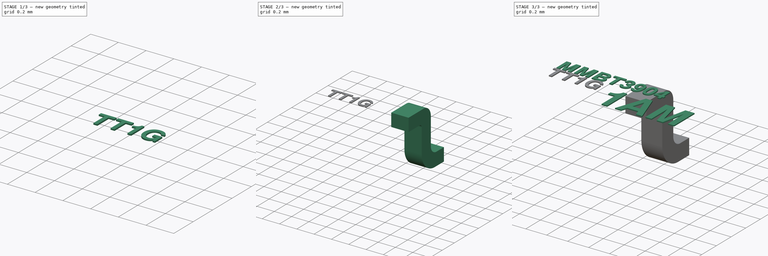
[diagram: build sequence overview — one tinted view per stage of 3, left to right]
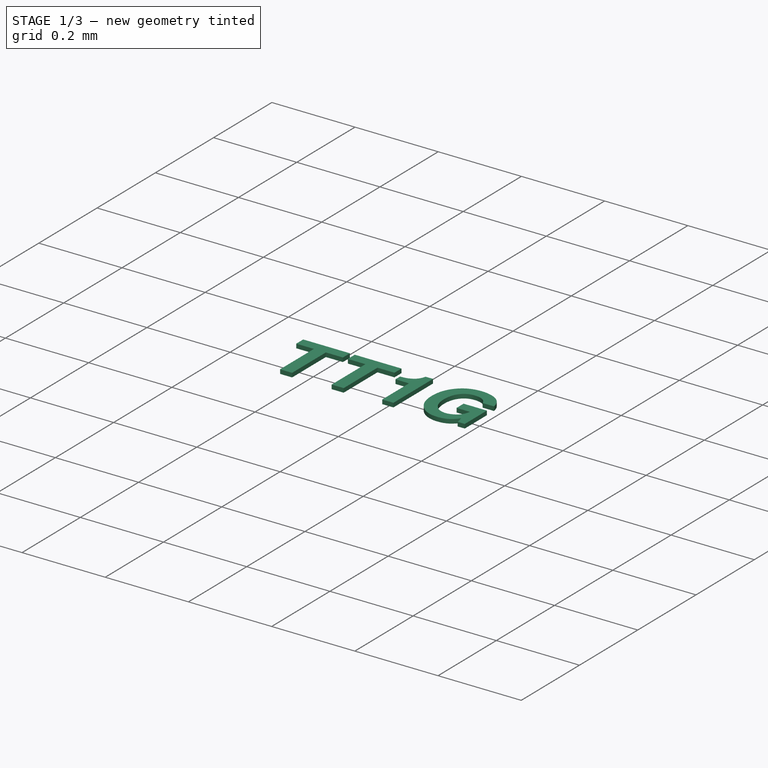
[diagram: stage 1 of 3 — iso view after this stage's code; geometry added in this stage tinted green]
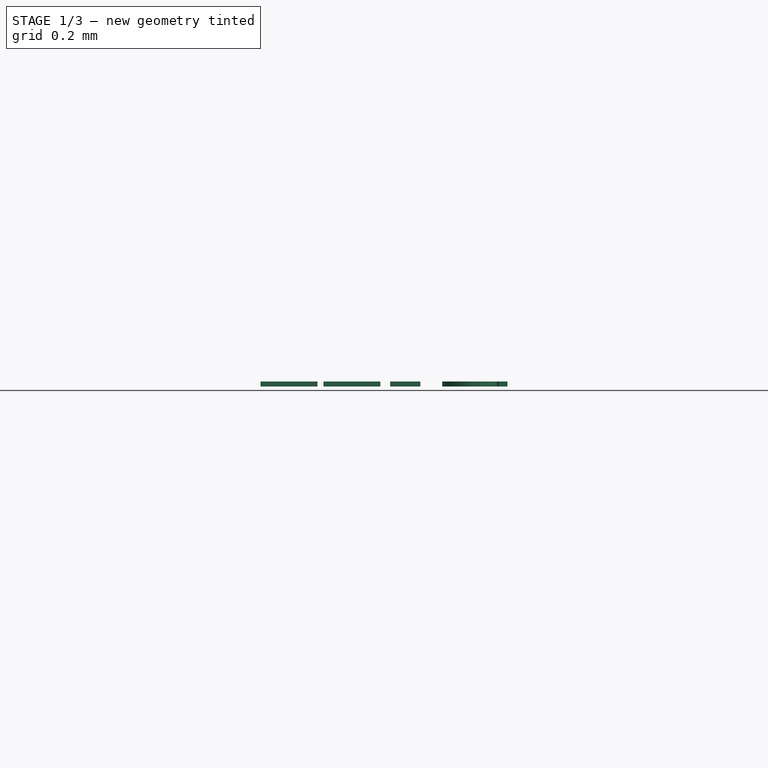
[diagram: stage 1 of 3 — front view after this stage's code; geometry added in this stage tinted green]
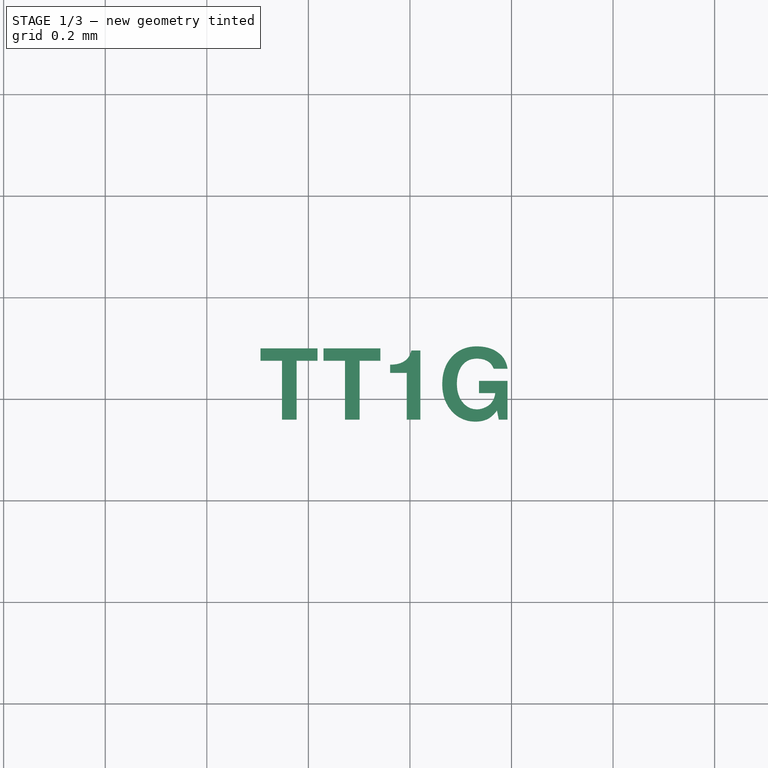
[diagram: stage 1 of 3 — top view after this stage's code; geometry added in this stage tinted green]
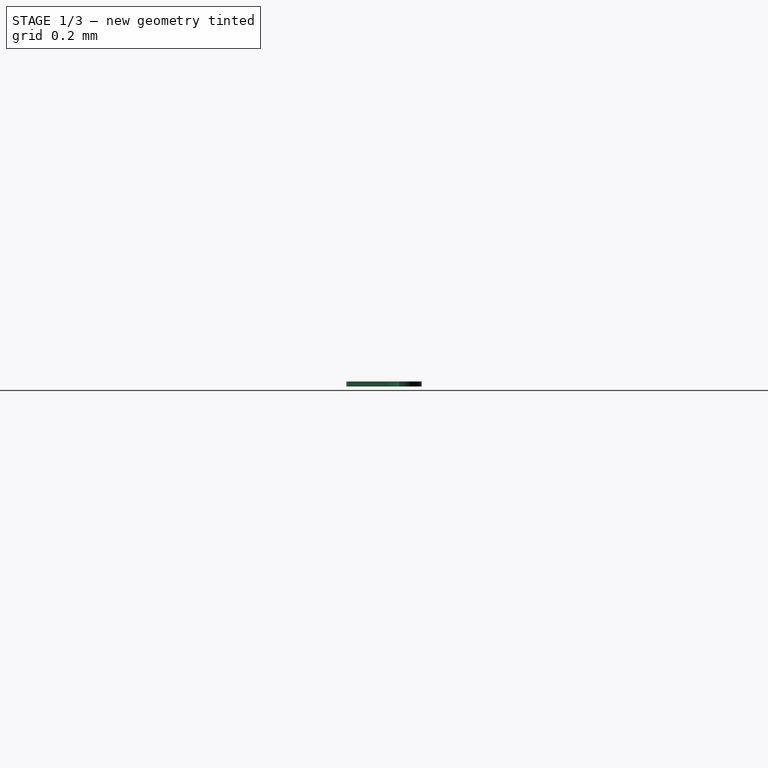
[diagram: stage 1 of 3 — right view after this stage's code; geometry added in this stage tinted green]
FCSTD DOCUMENT  (FreeCAD 0.19R16945 (Git))
Label: SOT-416_SC-75
License: All rights reserved
LicenseURL: http://en.wikipedia.org/wiki/All_rights_reserved
objects: Sketcher::SketchObject×4, PartDesign::Body×4, Part::Part2DObjectPython×3, Part::Extrusion×3, PartDesign::FeatureBase×2, Spreadsheet::Sheet×1, PartDesign::AdditiveLoft×1, PartDesign::Pad×1
note: 20 computed .brp shape members not serialized (recipe doc carries the construction recipe); baked Part::Feature solids carry a one-line shape summary decoded from their .brp

FEATURE [Spreadsheet::Sheet] Spreadsheet
  cells = A1=SOT-416; B1=NOM; A2=d_A; B2(d_A)==0.8mm; A3=d_A1; B3(d_A1)==0.05mm; A4=d_b; B4(d_b)==0.2mm; A5=d_c; B5(d_c)==0.15mm; C5=x; A6=d_D; B6(d_D)==1.6mm; A7=d_E; B7(d_E)==0.8mm; A8=d_e; B8(d_e)==1mm; A9=d_L; B9(d_L)==0.15mm; A10=d_L1; C10=x; A11=d_HE; B11(d_HE)==1.6mm; A12=d_T; B12(d_T)=2; C12=angle; A14=d_C; B14(d_C)=0.85; C14=package draft factor
FEATURE [Sketcher::SketchObject] Sketch  label="Mid"
  AttachmentOffset = pos=(0,0,0.53) rot=(0,0,1;0rad)
  MapMode = 5
  Placement = pos=(0,0,0.53) rot=(0,0,1;0rad)
  Support = -> [XY_Plane]
  expr: AttachmentOffset.Base.z = Spreadsheet.d_A1 + 0.6 * Spreadsheet.d_A
  expr: Constraints[10] = Spreadsheet.d_E
  expr: Constraints[9] = Spreadsheet.d_D
  sketch-geometry (4):
    g0: LineSegment StartX=-0.8 StartY=0.4 StartZ=0 EndX=0.8 EndY=0.4 EndZ=0
    g1: LineSegment StartX=0.8 StartY=0.4 StartZ=0 EndX=0.8 EndY=-0.4 EndZ=0
    g2: LineSegment StartX=0.8 StartY=-0.4 StartZ=0 EndX=-0.8 EndY=-0.4 EndZ=0
    g3: LineSegment StartX=-0.8 StartY=-0.4 StartZ=0 EndX=-0.8 EndY=0.4 EndZ=0
  constraints (11):
    c: Coincident(g0,g1)
    c: Coincident(g1,g2)
    c: Coincident(g2,g3)
    c: Coincident(g3,g0)
    c: Horizontal(g0)
    c: Horizontal(g2)
    c: Vertical(g1)
    c: Vertical(g3)
    c: Symmetric(g0,g2,g-1)
    c: DistanceX(g0,g0) = 1.6
    c: DistanceY(g3,g3) = 0.8
FEATURE [Sketcher::SketchObject] Sketch001  label="Bottom"
  AttachmentOffset = pos=(0,0,0.05) rot=(0,0,1;0rad)
  MapMode = 5
  Placement = pos=(0,0,0.05) rot=(0,0,1;0rad)
  Support = -> [XY_Plane]
  expr: AttachmentOffset.Base.z = Spreadsheet.d_A1
  expr: Constraints[10] = Spreadsheet.d_E * Spreadsheet.d_C
  expr: Constraints[9] = Spreadsheet.d_D
  sketch-geometry (4):
    g0: LineSegment StartX=-0.8 StartY=0.34 StartZ=0 EndX=0.8 EndY=0.34 EndZ=0
    g1: LineSegment StartX=0.8 StartY=0.34 StartZ=0 EndX=0.8 EndY=-0.34 EndZ=0
    g2: LineSegment StartX=0.8 StartY=-0.34 StartZ=0 EndX=-0.8 EndY=-0.34 EndZ=0
    g3: LineSegment StartX=-0.8 StartY=-0.34 StartZ=0 EndX=-0.8 EndY=0.34 EndZ=0
  constraints (11):
    c: Coincident(g0,g1)
    c: Coincident(g1,g2)
    c: Coincident(g2,g3)
    c: Coincident(g3,g0)
    c: Horizontal(g0)
    c: Horizontal(g2)
    c: Vertical(g1)
    c: Vertical(g3)
    c: Symmetric(g0,g2,g-1)
    c: DistanceX(g0,g0) = 1.6
    c: DistanceY(g3,g3) = 0.68
FEATURE [Sketcher::SketchObject] Sketch002  label="Top"
  AttachmentOffset = pos=(0,0,0.8) rot=(0,0,1;0rad)
  MapMode = 5
  Placement = pos=(0,0,0.8) rot=(0,0,1;0rad)
  Support = -> [XY_Plane]
  expr: Constraints[10] = Sketch001.Constraints[10]
  expr: Constraints[9] = Sketch001.Constraints[9]
  expr: AttachmentOffset.Base.z = Spreadsheet.d_A
  sketch-geometry (4):
    g0: LineSegment StartX=-0.8 StartY=0.34 StartZ=0 EndX=0.8 EndY=0.34 EndZ=0
    g1: LineSegment StartX=0.8 StartY=0.34 StartZ=0 EndX=0.8 EndY=-0.34 EndZ=0
    g2: LineSegment StartX=0.8 StartY=-0.34 StartZ=0 EndX=-0.8 EndY=-0.34 EndZ=0
    g3: LineSegment StartX=-0.8 StartY=-0.34 StartZ=0 EndX=-0.8 EndY=0.34 EndZ=0
  constraints (11):
    c: Coincident(g0,g1)
    c: Coincident(g1,g2)
    c: Coincident(g2,g3)
    c: Coincident(g3,g0)
    c: Horizontal(g0)
    c: Horizontal(g2)
    c: Vertical(g1)
    c: Vertical(g3)
    c: Symmetric(g0,g2,g-1)
    c: DistanceX(g0,g0) = 1.6
    c: DistanceY(g3,g3) = 0.68
FEATURE [PartDesign::AdditiveLoft] AdditiveLoft
  Closed = true
  Profile = -> Sketch002
  Ruled = true
  Sections = -> [Sketch,Sketch001]
FEATURE [PartDesign::Body] Body003  label="LeadClone2"
  Group = -> [Clone001]
  Origin = -> Origin003
  Placement = pos=(-0.5,0,0) rot=(0,0,1;3.14159rad)
  Tip = -> Clone001
  expr: Placement.Base.x = -Spreadsheet.d_e / 2
FEATURE [Part::Part2DObjectPython] ShapeString002  # Draft 2D object (typed FeaturePython)
  AttachmentOffset = pos=(-0.3,0.1,0) rot=(0,0,1;1.5708rad)
  FontFile = <userpath>/Desktop/GitHub/freecad-projects/00-fonts/FreeSansBold.ttf
  MapMode = 6
  Placement = pos=(-0.7,-0.04,0.8) rot=(0,0,1;0rad)
  Size = 0.075
  String = TT1G
  Support = -> [AdditiveLoft]
  Tracking = 0
FEATURE [Part::Extrusion] Extrude002
  Base = -> ShapeString002
  Dir = (0,0,1)
  DirMode = 2
  FaceMakerClass = Part::FaceMakerBullseye
  LengthFwd = 0.01
  LengthRev = 0
  Solid = false
  Symmetric = false
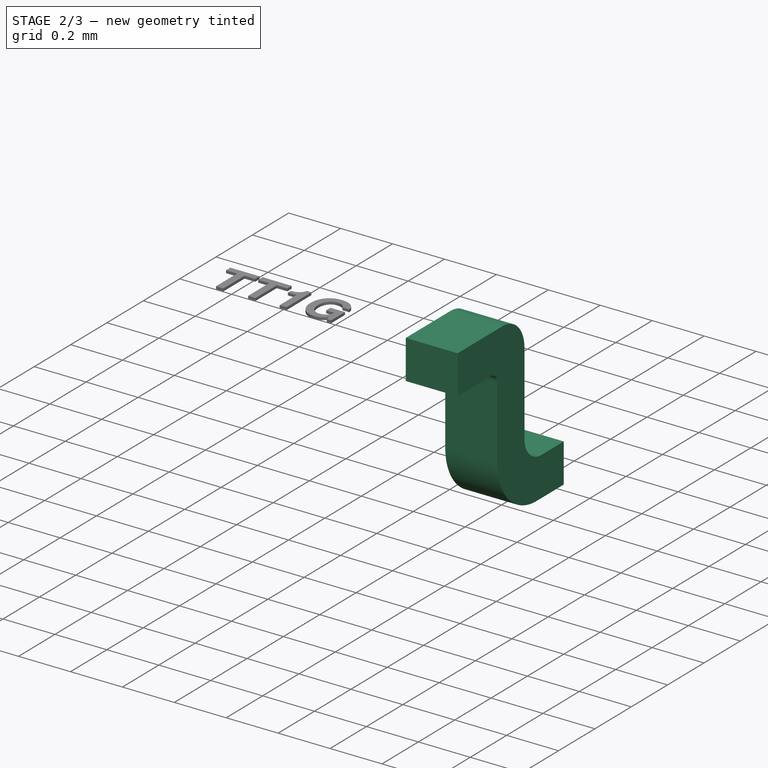
[diagram: stage 2 of 3 — iso view after this stage's code; geometry added in this stage tinted green]
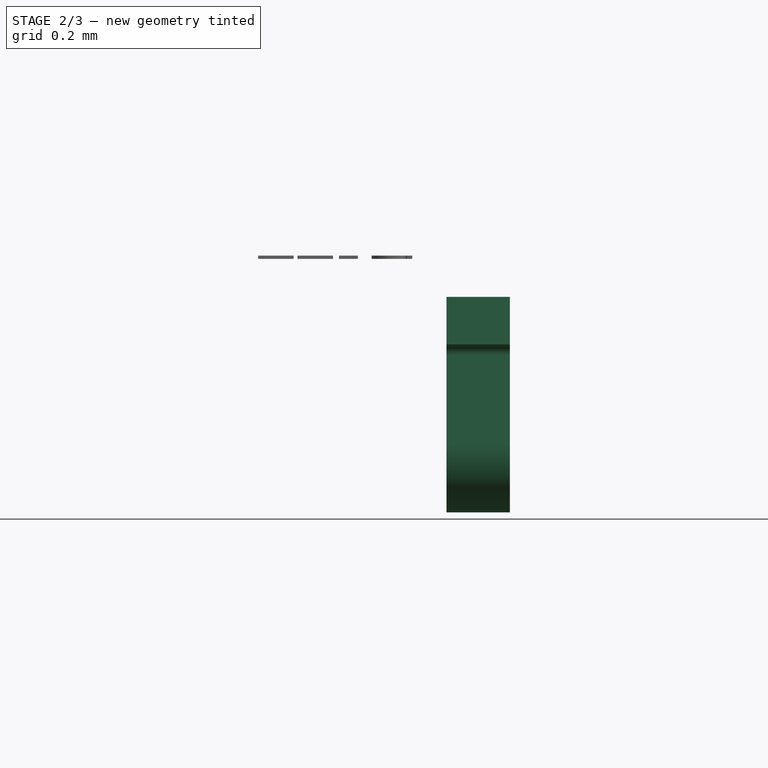
[diagram: stage 2 of 3 — front view after this stage's code; geometry added in this stage tinted green]
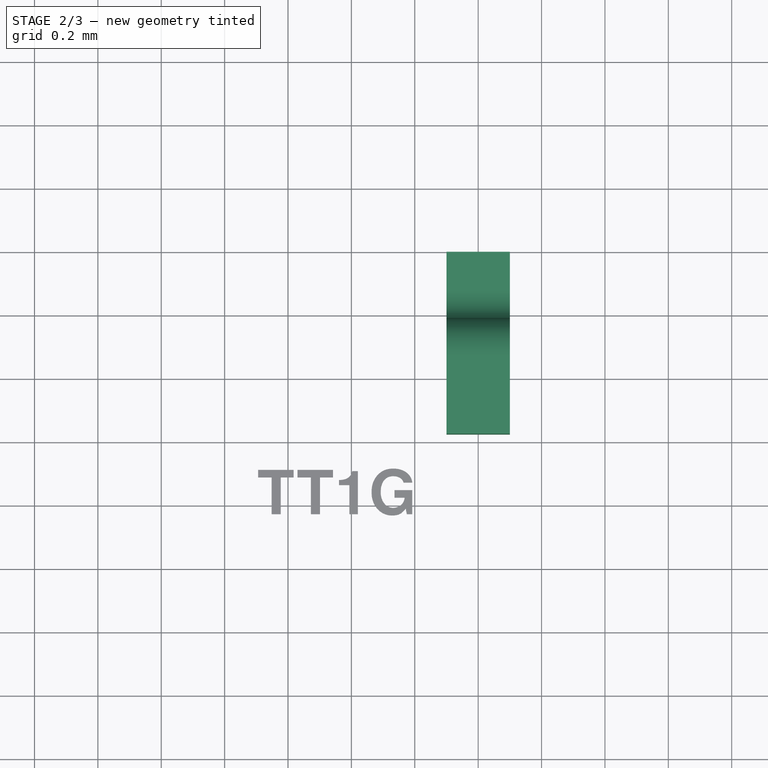
[diagram: stage 2 of 3 — top view after this stage's code; geometry added in this stage tinted green]
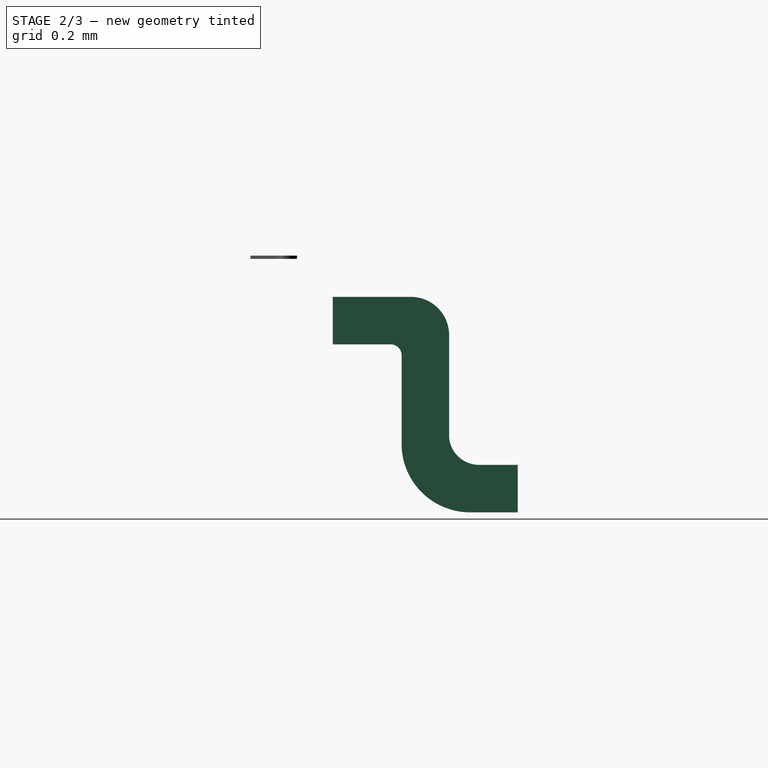
[diagram: stage 2 of 3 — right view after this stage's code; geometry added in this stage tinted green]
FEATURE [Sketcher::SketchObject] Sketch003
  MapMode = 5
  Placement = pos=(0,0,0) rot=(0.57735,0.57735,0.57735;2.0944rad)
  Support = -> [YZ_Plane001]
  expr: Constraints[23] = Spreadsheet.d_c
  expr: Constraints[15] = Spreadsheet.d_c
  expr: Constraints[7] = Spreadsheet.d_c
  expr: Constraints[26] = Spreadsheet.d_A1 + 0.6 * Spreadsheet.d_A
  expr: Constraints[3] = Spreadsheet.d_HE / 2
  expr: Constraints[2] = Spreadsheet.d_L
  sketch-geometry (12):
    g0: LineSegment StartX=0.65 StartY=0 StartZ=0 EndX=0.8 EndY=0 EndZ=0
    g1: ArcOfCircle CenterX=0.65 CenterY=0.216628 CenterZ=0 NormalX=0 NormalY=0 NormalZ=1 AngleXU=0 Radius=0.216628 StartAngle=3.17508 EndAngle=4.71239
    g2: LineSegment StartX=0.8 StartY=0 StartZ=0 EndX=0.8 EndY=0.15 EndZ=0
    g3: LineSegment StartX=0.8 StartY=0.15 StartZ=0 EndX=0.6816 EndY=0.15 EndZ=0
    g4: ArcOfCircle CenterX=0.677756 CenterY=0.244658 CenterZ=0 NormalX=0 NormalY=0 NormalZ=1 AngleXU=0 Radius=0.094736 StartAngle=3.24162 EndAngle=4.75298
    g5: LineSegment StartX=0.433494 StartY=0.209375 StartZ=0 EndX=0.433494 EndY=0.497765 EndZ=0
    g6: LineSegment StartX=0.583494 StartY=0.235198 StartZ=0 EndX=0.583494 EndY=0.559324 EndZ=0
    g7: ArcOfCircle CenterX=0.399043 CenterY=0.495607 CenterZ=0 NormalX=0 NormalY=0 NormalZ=1 AngleXU=0 Radius=0.0345185 StartAngle=0.0625713 EndAngle=1.65595
    g8: LineSegment StartX=0.396107 StartY=0.53 StartZ=0 EndX=0.216153 EndY=0.53 EndZ=0
    g9: LineSegment StartX=0.216153 StartY=0.53 StartZ=0 EndX=0.216153 EndY=0.68 EndZ=0
    g10: LineSegment StartX=0.216153 StartY=0.68 StartZ=0 EndX=0.462817 EndY=0.68 EndZ=0
    g11: ArcOfCircle CenterX=0.462817 CenterY=0.559324 CenterZ=0 NormalX=0 NormalY=0 NormalZ=1 AngleXU=0 Radius=0.120676 StartAngle=0 EndAngle=1.5708
  constraints (27):
    c: PointOnObject(g0,g-1)
    c: PointOnObject(g0,g-1)
    c: DistanceX(g0,g0) = 0.15
    c: DistanceX(g-1,g0) = 0.8
    c: Tangent(g1,g0) = -1.5708
    c: Coincident(g2,g0)
    c: Vertical(g2)
    c: DistanceY(g2,g2) = 0.15
    c: Coincident(g3,g2)
    c: Horizontal(g3)
    c: Coincident(g4,g3)
    c: Coincident(g5,g1)
    c: Vertical(g5)
    c: Coincident(g6,g4)
    c: Vertical(g6)
    c: DistanceX(g1,g4) = 0.15
    c: Coincident(g7,g5)
    c: Coincident(g8,g7)
    c: Horizontal(g8)
    c: Coincident(g9,g8)
    c: Vertical(g9)
    c: Coincident(g10,g9)
    c: Horizontal(g10)
    c: DistanceY(g9,g9) = 0.15
    c: Tangent(g6,g11) = -1.5708
    c: Tangent(g10,g11) = 1.5708
    c: DistanceY(g-1,g8) = 0.53
FEATURE [PartDesign::Pad] Pad
  Length = 0.2
  Length2 = 100
  Midplane = true
  Placement = pos=(0,0,0) rot=(0.57735,0.57735,0.57735;2.0944rad)
  Profile = -> Sketch003
  Type = 0
  expr: Length = Spreadsheet.d_b
FEATURE [PartDesign::Body] Body001  label="Lead"
  Group = -> [Sketch003,Pad]
  Origin = -> Origin001
  Tip = -> Pad
FEATURE [PartDesign::FeatureBase] Clone
  BaseFeature = -> Body001
FEATURE [PartDesign::Body] Body002  label="LeadClone1"
  Group = -> [Clone]
  Origin = -> Origin002
  Placement = pos=(0.5,0,0) rot=(0,0,1;3.14159rad)
  Tip = -> Clone
  expr: Placement.Base.x = Spreadsheet.d_e / 2
FEATURE [PartDesign::FeatureBase] Clone001
  BaseFeature = -> Body001
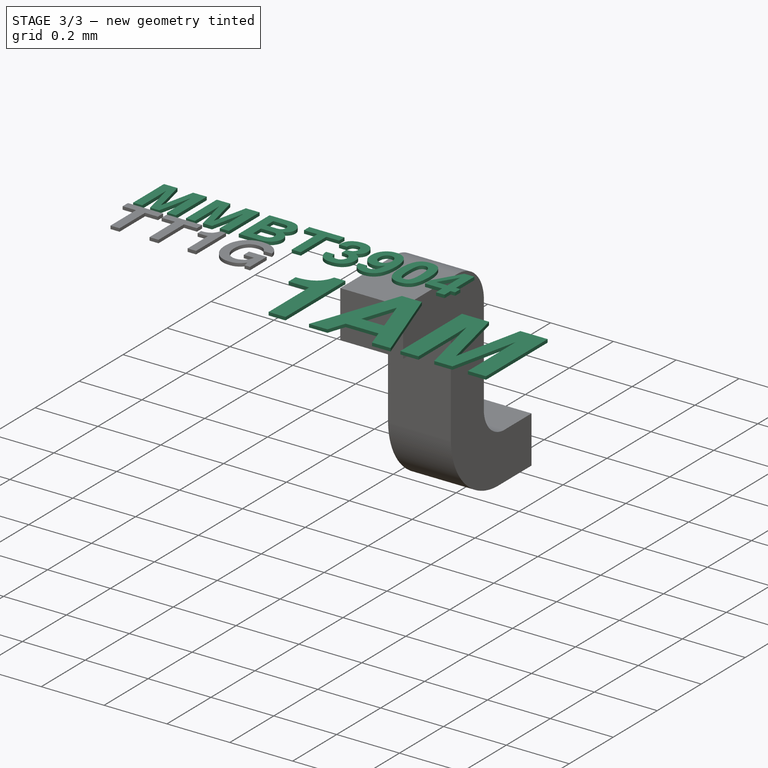
[diagram: stage 3 of 3 — iso view after this stage's code; geometry added in this stage tinted green]
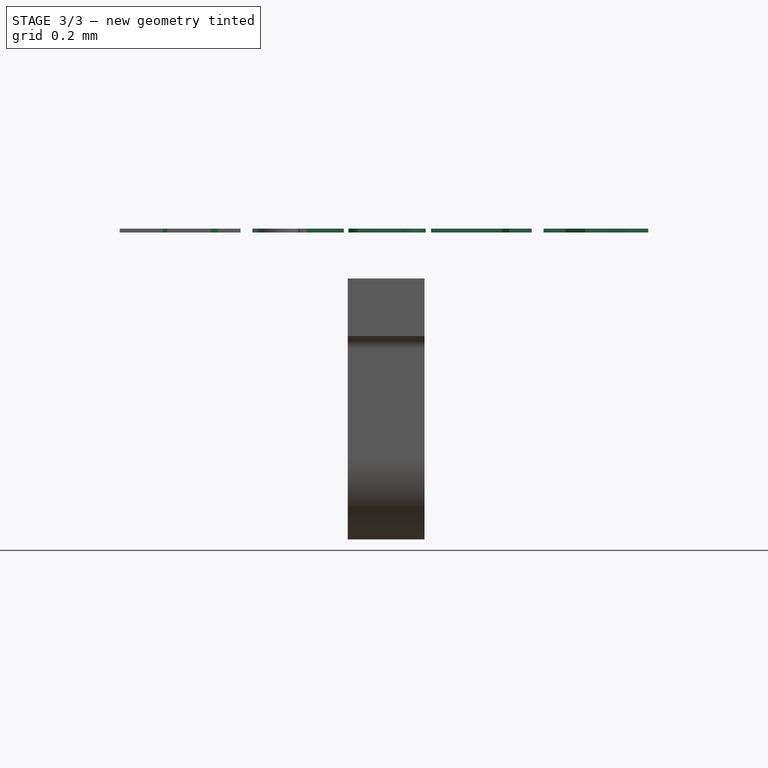
[diagram: stage 3 of 3 — front view after this stage's code; geometry added in this stage tinted green]
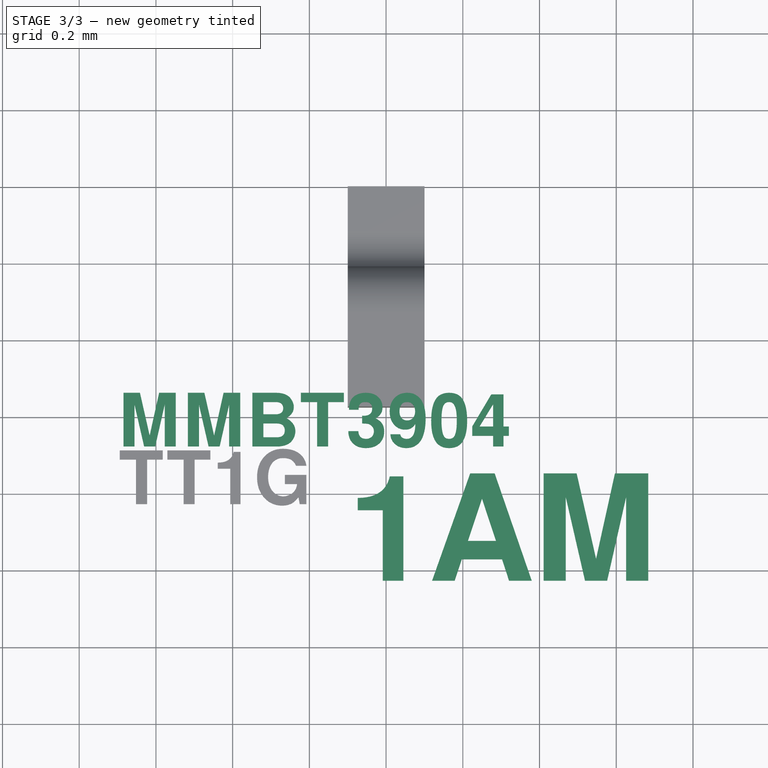
[diagram: stage 3 of 3 — top view after this stage's code; geometry added in this stage tinted green]
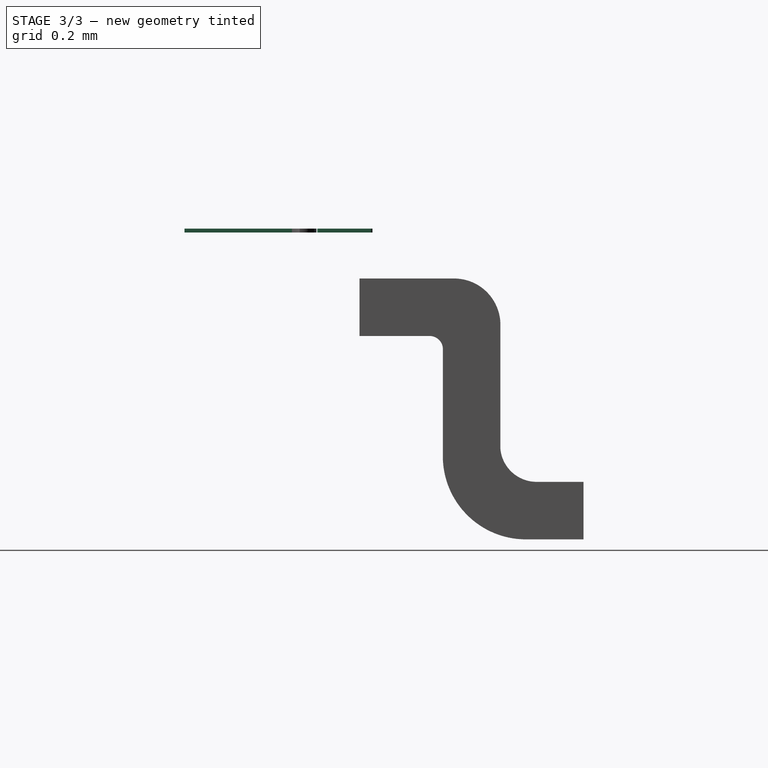
[diagram: stage 3 of 3 — right view after this stage's code; geometry added in this stage tinted green]
FEATURE [PartDesign::Body] Body  label="Housing"
  Group = -> [Sketch,Sketch001,Sketch002,AdditiveLoft]
  Origin = -> Origin
  Tip = -> AdditiveLoft
FEATURE [Part::Part2DObjectPython] ShapeString  # Draft 2D object (typed FeaturePython)
  AttachmentOffset = pos=(-0.45,0.1,0) rot=(0,0,1;1.5708rad)
  FontFile = <userpath>/Desktop/GitHub/freecad-projects/00-fonts/FreeSansBold.ttf
  MapMode = 6
  Placement = pos=(-0.7,0.11,0.8) rot=(0,0,1;0rad)
  Size = 0.075
  String = MMBT3904
  Support = -> [AdditiveLoft]
  Tracking = 0
FEATURE [Part::Part2DObjectPython] ShapeString001  # Draft 2D object (typed FeaturePython)
  AttachmentOffset = pos=(-0.1,0.7,0) rot=(0,0,1;1.5708rad)
  FontFile = <userpath>/Desktop/GitHub/freecad-projects/00-fonts/FreeSansBold.ttf
  MapMode = 6
  Placement = pos=(-0.1,-0.24,0.8) rot=(0,0,1;0rad)
  Size = 0.15
  String = 1AM
  Support = -> [AdditiveLoft]
  Tracking = 0
FEATURE [Part::Extrusion] Extrude  label="Text_1"
  Base = -> ShapeString
  Dir = (0,0,1)
  DirMode = 2
  FaceMakerClass = Part::FaceMakerBullseye
  LengthFwd = 0.01
  LengthRev = 0
  Solid = false
  Symmetric = false
FEATURE [Part::Extrusion] Extrude001
  Base = -> ShapeString001
  Dir = (0,0,1)
  DirMode = 2
  FaceMakerClass = Part::FaceMakerBullseye
  LengthFwd = 0.01
  LengthRev = 0
  Solid = false
  Symmetric = false
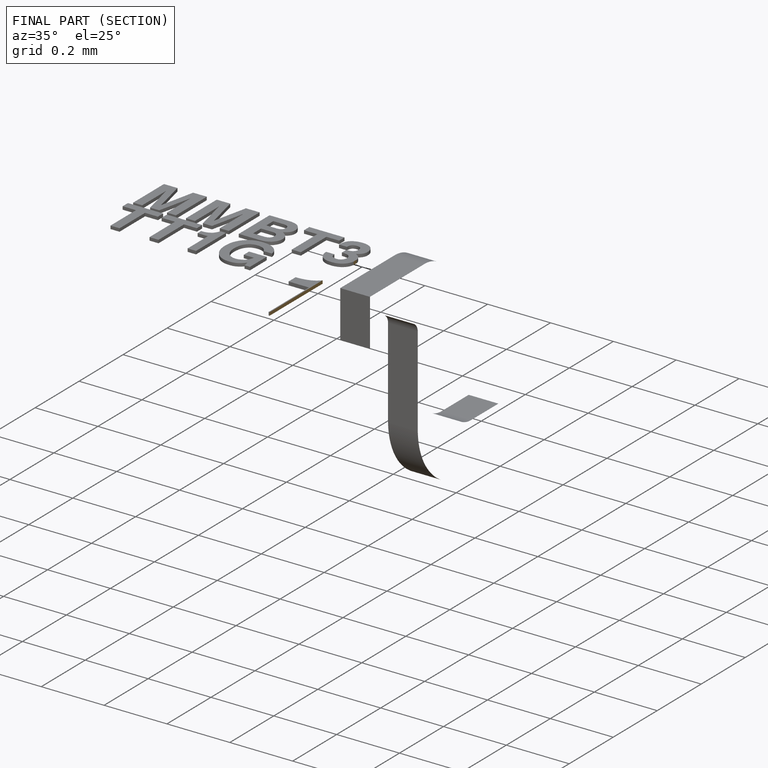
[diagram: finished part — half-section view (interior)]
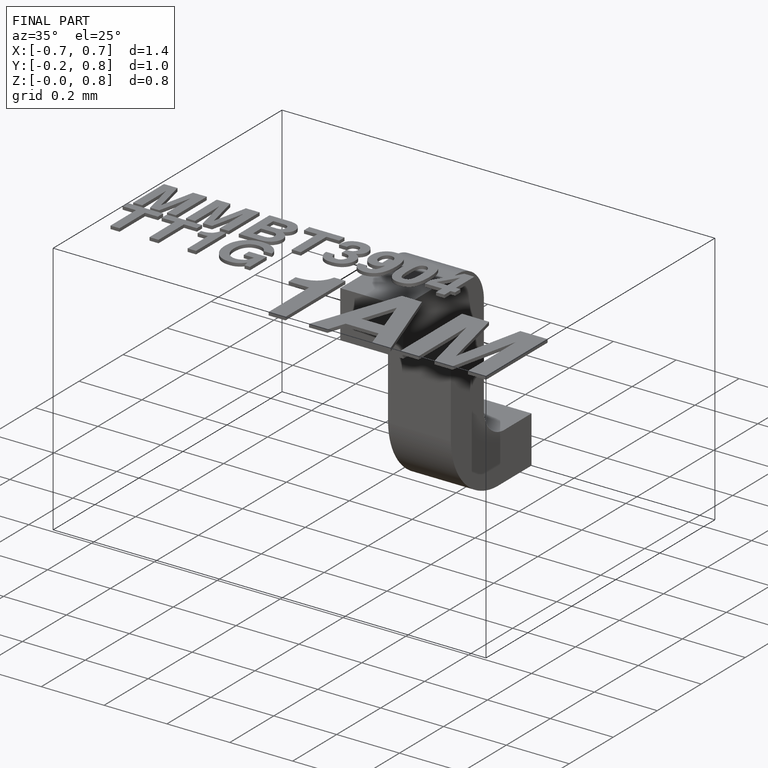
[diagram: finished part — iso view with bounding-box wireframe]
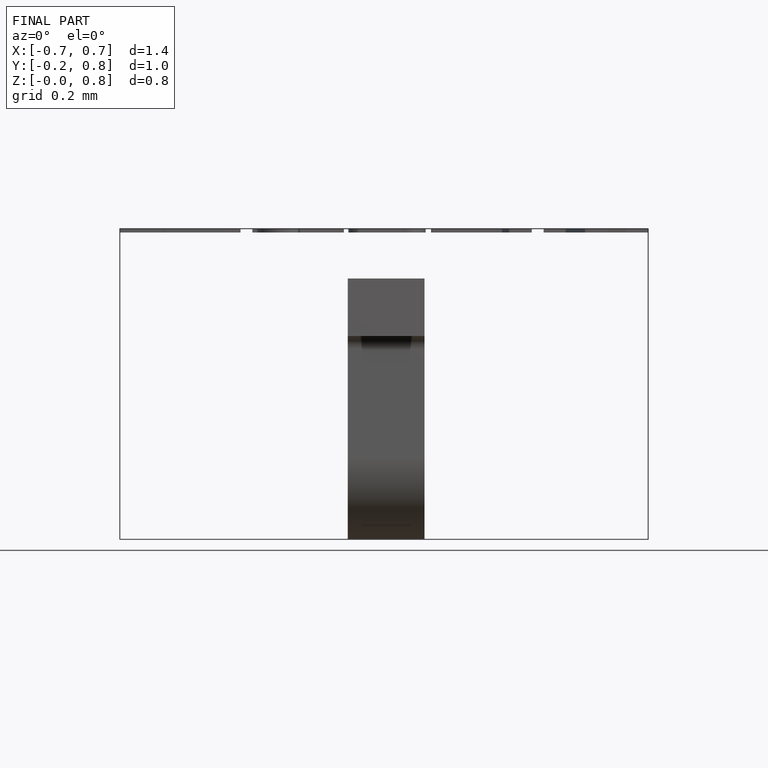
[diagram: finished part — front view with bounding-box wireframe]
